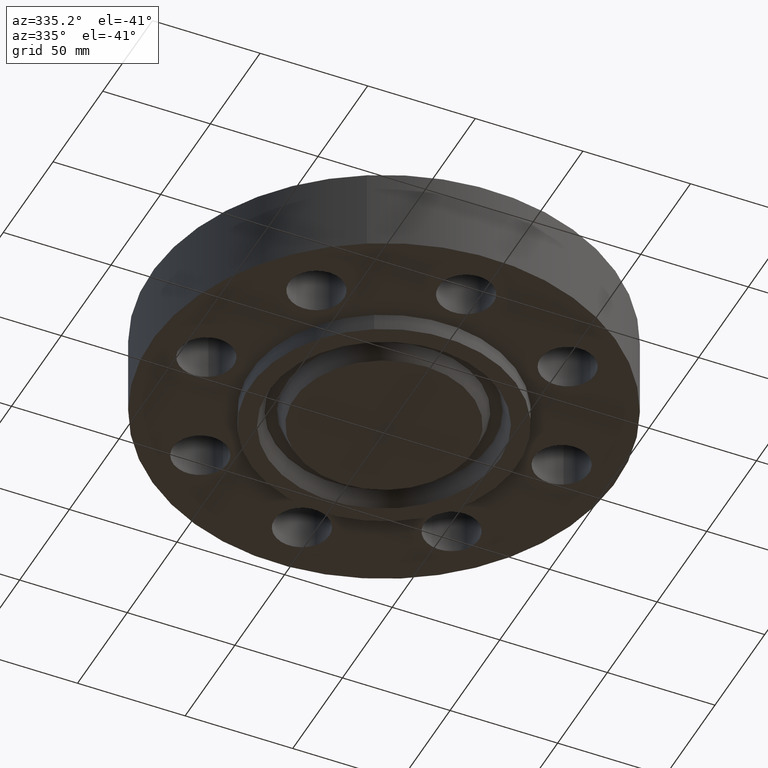
[diagram: clean part render]
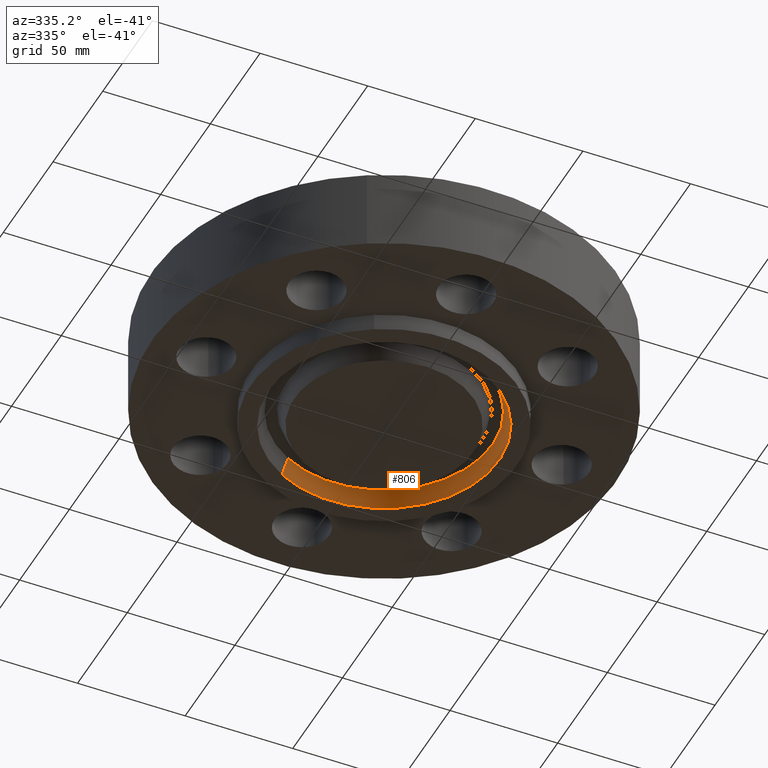
[diagram: same view with one face highlighted and labeled with its STEP entity id]
A machine part, auxiliary view. The second image highlights one B-rep face of the part: STEP entity #806.
In plain terms, the highlighted conical surface has half-angle 23 deg.
Its self-contained STEP definition (entity closure, byte-faithful):
#88=AXIS2_PLACEMENT_3D('Circle Axis2P3D',#86,#87,$) ;
#741=AXIS2_PLACEMENT_3D('Cone Axis2P3D',#738,#739,#740) ;
#762=AXIS2_PLACEMENT_3D('Circle Axis2P3D',#760,#761,$) ;
#81=CARTESIAN_POINT('Vertex',(1.01134817369,-1.85126041432,-0.313000000001)) ;
#83=CARTESIAN_POINT('Vertex',(-1.01134817369,1.85126041432,-0.313000000001)) ;
#86=CARTESIAN_POINT('Axis2P3D Location',(1.39870617276E-016,0.,-0.313000000001)) ;
#707=CARTESIAN_POINT('Vertex',(-0.951495050096,1.74170000647,-0.0188873350169)) ;
#709=CARTESIAN_POINT('Vertex',(0.951495050096,-1.74170000647,-0.0188873350169)) ;
#738=CARTESIAN_POINT('Axis2P3D Location',(0.,0.,-0.0188873350169)) ;
#743=CARTESIAN_POINT('Line Origine',(-0.981421611893,1.79648021039,-0.165943667509)) ;
#748=CARTESIAN_POINT('Line Origine',(0.981421611893,-1.79648021039,-0.165943667509)) ;
#760=CARTESIAN_POINT('Axis2P3D Location',(0.,0.,-0.0188873350169)) ;
#87=DIRECTION('Axis2P3D Direction',(0.,0.,-0.0393700787402)) ;
#739=DIRECTION('Axis2P3D Direction',(-0.,-0.,-0.0393700787402)) ;
#740=DIRECTION('Axis2P3D XDirection',(-0.0188750212049,0.0345504945626,0.)) ;
#744=DIRECTION('Vector Direction',(-0.00737505833565,0.0134999537303,-0.0362403485611)) ;
#749=DIRECTION('Vector Direction',(0.00737505833565,-0.0134999537303,-0.0362403485611)) ;
#761=DIRECTION('Axis2P3D Direction',(0.,0.,0.0393700787402)) ;
#745=VECTOR('Line Direction',#744,0.0393700787402) ;
#750=VECTOR('Line Direction',#749,0.0393700787402) ;
#801=ORIENTED_EDGE('',*,*,#90,.T.) ;
#802=ORIENTED_EDGE('',*,*,#752,.T.) ;
#803=ORIENTED_EDGE('',*,*,#764,.T.) ;
#804=ORIENTED_EDGE('',*,*,#747,.F.) ;
#806=ADVANCED_FACE('PartBody',(#805),#742,.F.) ;
#89=CIRCLE('generated circle',#88,2.10950000001) ;
#763=CIRCLE('generated circle',#762,1.98465658059) ;
#742=CONICAL_SURFACE('Cone',#741,1.98465658059,0.401425727959) ;
#90=EDGE_CURVE('',#84,#82,#89,.T.) ;
#747=EDGE_CURVE('',#84,#708,#746,.F.) ;
#752=EDGE_CURVE('',#82,#710,#751,.F.) ;
#764=EDGE_CURVE('',#710,#708,#763,.T.) ;
#800=EDGE_LOOP('',(#801,#802,#803,#804)) ;
#805=FACE_OUTER_BOUND('',#800,.T.) ;
#746=LINE('Line',#743,#745) ;
#751=LINE('Line',#748,#750) ;
#82=VERTEX_POINT('',#81) ;
#84=VERTEX_POINT('',#83) ;
#708=VERTEX_POINT('',#707) ;
#710=VERTEX_POINT('',#709) ;